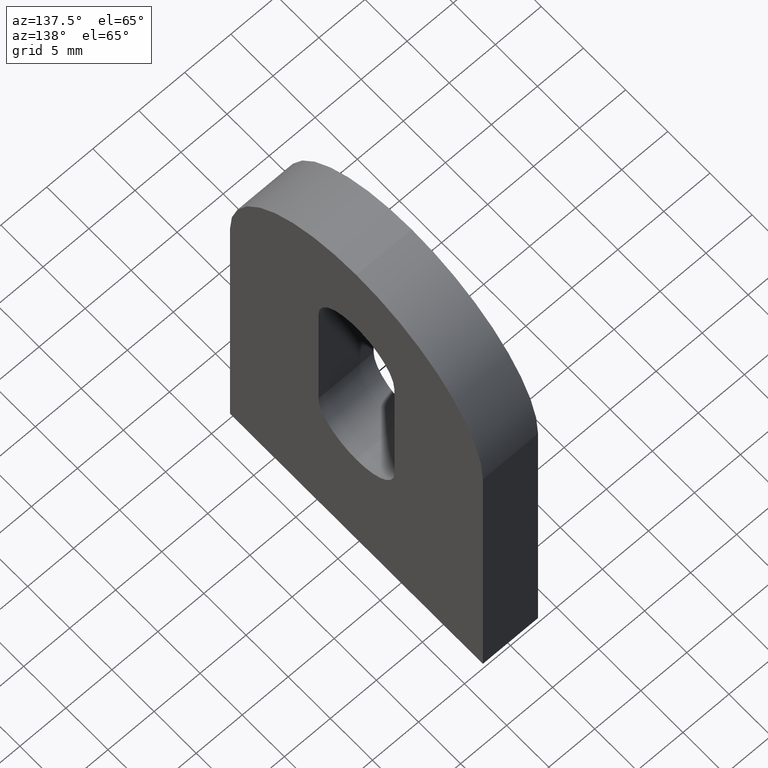
[diagram: clean part render]
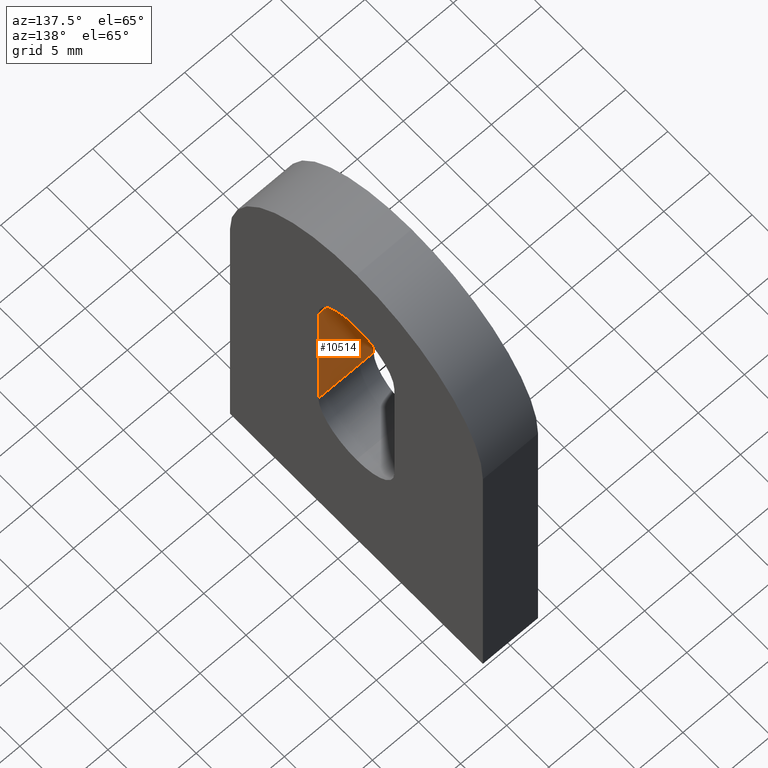
[diagram: same view with one face highlighted and labeled with its STEP entity id]
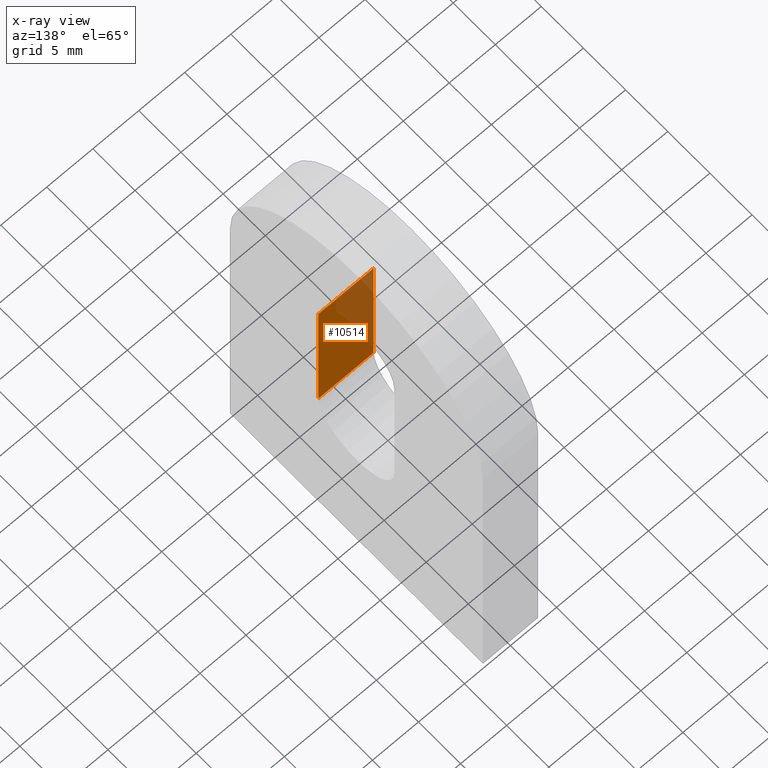
[diagram: x-ray of the same camera — body ghosted, the highlighted face saturated]
A machine part, auxiliary view. The second image highlights one B-rep face of the part: STEP entity #10514.
The next image is the same camera in x-ray: the body ghosted, the highlighted face saturated — about 35% of this face is hidden behind the body in this view.
In plain terms, the highlighted planar face has unit normal (0, -1, -0).
Its self-contained STEP definition (entity closure, byte-faithful):
#44 = VERTEX_POINT ( 'NONE', #2334 ) ;
#160 = ORIENTED_EDGE ( 'NONE', *, *, #4909, .T. ) ;
#872 = DIRECTION ( 'NONE',  ( 1.000000000000000000, -0.0000000000000000000, -0.0000000000000000000 ) ) ;
#1576 = CARTESIAN_POINT ( 'NONE',  ( -3.000000000000000000, -4.500000000000000900, 35.50000000000000000 ) ) ;
#1667 = ORIENTED_EDGE ( 'NONE', *, *, #9192, .T. ) ;
#1691 = EDGE_LOOP ( 'NONE', ( #1667, #6313, #5305, #160 ) ) ;
#2164 = CARTESIAN_POINT ( 'NONE',  ( 3.000000000000000000, -4.500000000000000900, 35.50000000000000000 ) ) ;
#2334 = CARTESIAN_POINT ( 'NONE',  ( 3.000000000000000000, -4.500000000000000900, 35.50000000000000000 ) ) ;
#2587 = DIRECTION ( 'NONE',  ( 1.000000000000000000, -0.0000000000000000000, -0.0000000000000000000 ) ) ;
#3038 = VECTOR ( 'NONE', #8510, 1000.000000000000000 ) ;
#3323 = EDGE_CURVE ( 'NONE', #7317, #10118, #4489, .T. ) ;
#3586 = LINE ( 'NONE', #2164, #7428 ) ;
#3898 = CARTESIAN_POINT ( 'NONE',  ( -3.000000000000000000, -4.500000000000000900, 35.50000000000000000 ) ) ;
#4195 = LINE ( 'NONE', #5952, #3038 ) ;
#4341 = CARTESIAN_POINT ( 'NONE',  ( -3.000000000000000000, -4.500000000000000000, 19.49999999999999600 ) ) ;
#4489 = LINE ( 'NONE', #4341, #8592 ) ;
#4909 = EDGE_CURVE ( 'NONE', #6822, #44, #6257, .T. ) ;
#5305 = ORIENTED_EDGE ( 'NONE', *, *, #6041, .F. ) ;
#5952 = CARTESIAN_POINT ( 'NONE',  ( -3.000000000000000000, -4.500000000000000900, 35.50000000000000000 ) ) ;
#6041 = EDGE_CURVE ( 'NONE', #6822, #7317, #4195, .T. ) ;
#6131 = CARTESIAN_POINT ( 'NONE',  ( -3.000000000000000000, -4.500000000000000900, 35.50000000000000000 ) ) ;
#6257 = LINE ( 'NONE', #1576, #10258 ) ;
#6313 = ORIENTED_EDGE ( 'NONE', *, *, #3323, .F. ) ;
#6367 = DIRECTION ( 'NONE',  ( 0.0000000000000000000, 1.626303258728256700E-016, -1.000000000000000000 ) ) ;
#6822 = VERTEX_POINT ( 'NONE', #6131 ) ;
#6864 = FACE_OUTER_BOUND ( 'NONE', #1691, .T. ) ;
#6913 = AXIS2_PLACEMENT_3D ( 'NONE', #3898, #9676, #6367 ) ;
#7317 = VERTEX_POINT ( 'NONE', #8861 ) ;
#7428 = VECTOR ( 'NONE', #8679, 1000.000000000000000 ) ;
#8064 = CARTESIAN_POINT ( 'NONE',  ( 3.000000000000000000, -4.500000000000000000, 19.49999999999999600 ) ) ;
#8510 = DIRECTION ( 'NONE',  ( 0.0000000000000000000, 1.626303258728256700E-016, -1.000000000000000000 ) ) ;
#8592 = VECTOR ( 'NONE', #2587, 1000.000000000000000 ) ;
#8679 = DIRECTION ( 'NONE',  ( 0.0000000000000000000, 1.626303258728256700E-016, -1.000000000000000000 ) ) ;
#8861 = CARTESIAN_POINT ( 'NONE',  ( -3.000000000000000000, -4.499999999999998200, 19.49999999999999600 ) ) ;
#9192 = EDGE_CURVE ( 'NONE', #44, #10118, #3586, .T. ) ;
#9603 = PLANE ( 'NONE',  #6913 ) ;
#9676 = DIRECTION ( 'NONE',  ( 0.0000000000000000000, -1.000000000000000000, -1.626303258728256700E-016 ) ) ;
#10118 = VERTEX_POINT ( 'NONE', #8064 ) ;
#10258 = VECTOR ( 'NONE', #872, 1000.000000000000000 ) ;
#10514 = ADVANCED_FACE ( 'NONE', ( #6864 ), #9603, .F. ) ;